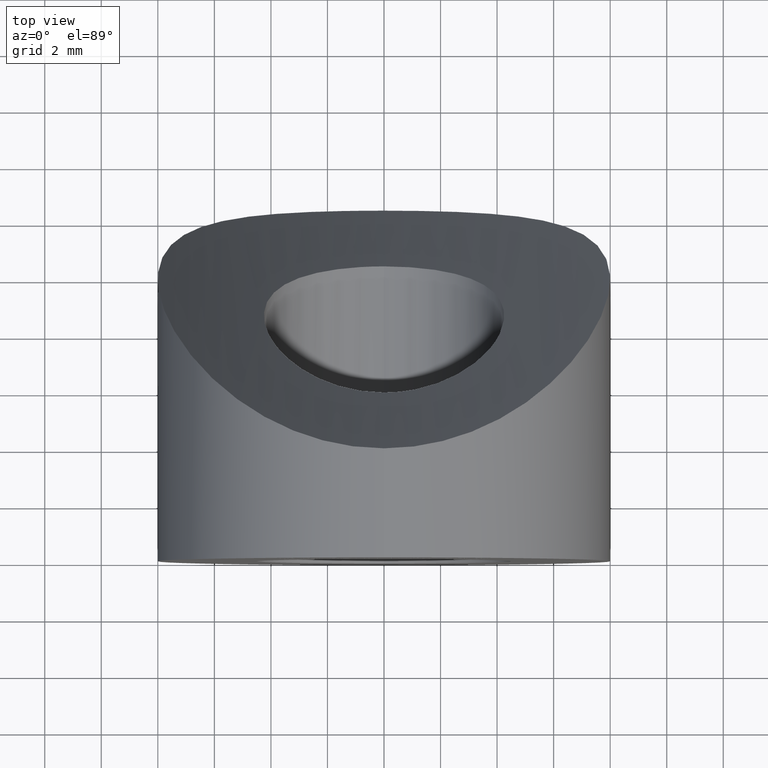
[diagram: clean part render]
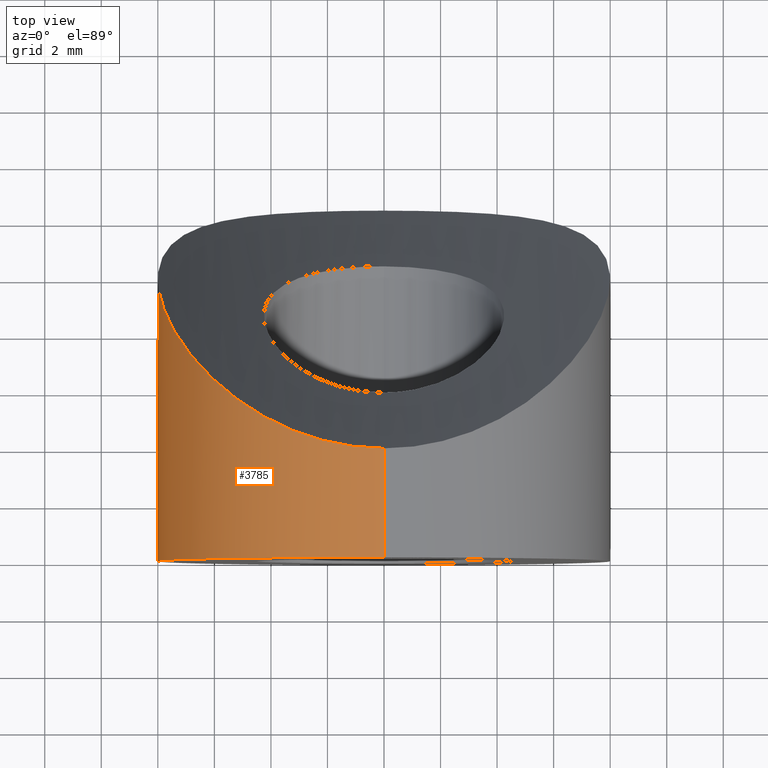
[diagram: same view with one face highlighted and labeled with its STEP entity id]
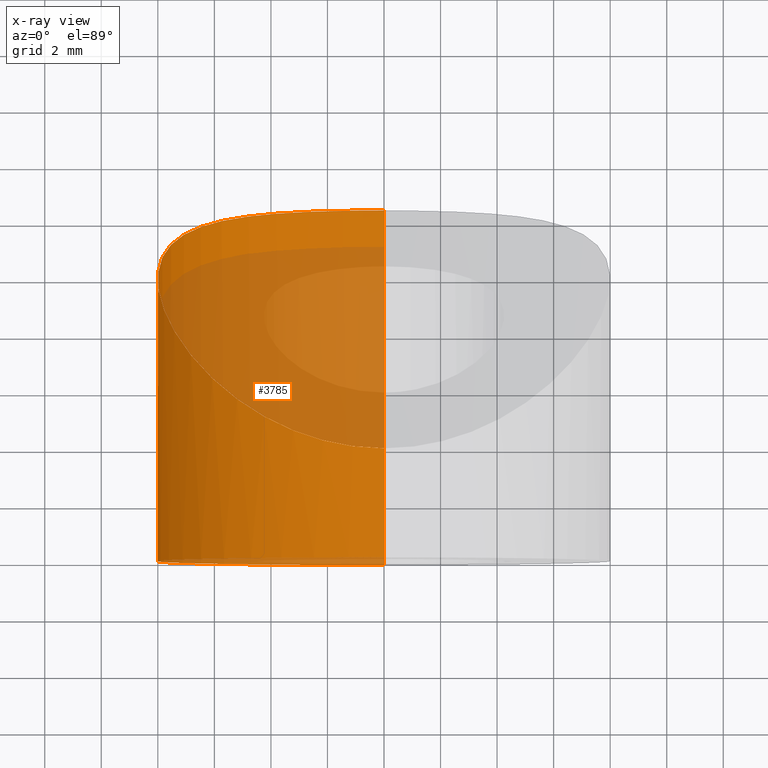
[diagram: x-ray of the same camera — body ghosted, the highlighted face saturated]
A machine part, top view. The second image highlights one B-rep face of the part: STEP entity #3785.
The next image is the same camera in x-ray: the body ghosted, the highlighted face saturated — about 45% of this face is hidden behind the body in this view.
In plain terms, the highlighted cylindrical surface (partial cylindrical patch) has radius 8 mm, axis along (-0, -1, -0).
Its self-contained STEP definition (entity closure, byte-faithful):
#338 = CARTESIAN_POINT ( 'NONE',  ( -2.786736152788436400, 12.48508676179984000, -7.520094087675589700 ) ) ;
#1299 = CARTESIAN_POINT ( 'NONE',  ( 0.0000000000000000000, 15.00000000000000000, 0.0000000000000000000 ) ) ;
#1388 = CARTESIAN_POINT ( 'NONE',  ( -7.702381306660215400, 8.667584045172475300, 2.174738470362469500 ) ) ;
#1633 = CARTESIAN_POINT ( 'NONE',  ( 0.0000000000000000000, 12.54364559710750400, -8.000000000000000000 ) ) ;
#1642 = FACE_OUTER_BOUND ( 'NONE', #5825, .T. ) ;
#1650 = DIRECTION ( 'NONE',  ( -0.0000000000000000000, -1.000000000000000000, -0.0000000000000000000 ) ) ;
#1696 = CARTESIAN_POINT ( 'NONE',  ( -6.872287920162157200, 7.262174114333410200, 4.122343440638348800 ) ) ;
#2157 = AXIS2_PLACEMENT_3D ( 'NONE', #1299, #2343, #10087 ) ;
#2327 = B_SPLINE_CURVE_WITH_KNOTS ( 'NONE', 3,
 ( #4822, #4664, #9298, #6047, #7191, #10574, #8371, #11616, #3784, #12644, #10476, #9393, #3832, #6145, #8274, #1696, #13844, #8946, #5673, #13490, #1388, #6792, #8994, #4642, #6683, #2387, #10119, #12375, #5776, #6889, #3814, #9193, #13684, #4699, #8118, #2640, #3716, #6939, #11468, #338, #11508, #5887, #4856, #1633 ),
 .UNSPECIFIED., .F., .F.,
 ( 4, 2, 2, 2, 2, 2, 2, 2, 2, 2, 2, 2, 2, 2, 2, 2, 2, 2, 2, 2, 2, 4 ),
 ( 0.02701819719520242800, 0.02786116612738330200, 0.02870413505956417200, 0.02954710399174504500, 0.03039007292392591600, 0.03207601078828765900, 0.03376194865264940700, 0.03544788651701115400, 0.03713382438137289400, 0.03797679331355376800, 0.03881976224573464200, 0.04050570011009638900, 0.04134866904227726300, 0.04219163797445813600, 0.04387757583881987700, 0.04472054477100075000, 0.04556351370318162400, 0.04724945156754337100, 0.04893538943190511900, 0.05062132729626685200, 0.05230726516062859900, 0.05399320302499034700 ),
 .UNSPECIFIED. ) ;
#2343 = DIRECTION ( 'NONE',  ( -0.0000000000000000000, -1.000000000000000000, -0.0000000000000000000 ) ) ;
#2349 = VERTEX_POINT ( 'NONE', #8091 ) ;
#2387 = CARTESIAN_POINT ( 'NONE',  ( -7.990361364526486400, 10.23204400104939400, -0.4659814713280361900 ) ) ;
#2442 = LINE ( 'NONE', #12736, #12284 ) ;
#2640 = CARTESIAN_POINT ( 'NONE',  ( -5.621466763060554200, 12.16486885297038800, -5.719661064488838600 ) ) ;
#3575 = ORIENTED_EDGE ( 'NONE', *, *, #10992, .T. ) ;
#3716 = CARTESIAN_POINT ( 'NONE',  ( -5.209733333389100300, 12.24419281215258300, -6.096946806651213400 ) ) ;
#3784 = CARTESIAN_POINT ( 'NONE',  ( -2.984336613303713900, 4.405936689386974700, 7.427223310258525200 ) ) ;
#3785 = ADVANCED_FACE ( 'NONE', ( #1642 ), #6456, .T. ) ;
#3814 = CARTESIAN_POINT ( 'NONE',  ( -7.425314106272754300, 11.35086809684480300, -2.989536951724244500 ) ) ;
#3832 = CARTESIAN_POINT ( 'NONE',  ( -5.358877780947066700, 5.744293494589231700, 5.959421206919623500 ) ) ;
#4015 = VERTEX_POINT ( 'NONE', #14089 ) ;
#4642 = CARTESIAN_POINT ( 'NONE',  ( -7.998716546680868500, 9.829325262146340900, 0.2828505063567090500 ) ) ;
#4664 = CARTESIAN_POINT ( 'NONE',  ( -0.2830179921744991300, 3.856354402892480300, 7.999999999999998200 ) ) ;
#4699 = CARTESIAN_POINT ( 'NONE',  ( -6.683778314718883200, 11.83300966187129100, -4.429503339823750900 ) ) ;
#4822 = CARTESIAN_POINT ( 'NONE',  ( -1.160757014394251200E-014, 3.856354402892348400, 8.000000000000142100 ) ) ;
#4856 = CARTESIAN_POINT ( 'NONE',  ( -0.5700190088106780200, 12.54364559710750400, -8.000000000000001800 ) ) ;
#4857 = VECTOR ( 'NONE', #1650, 1000.000000000000000 ) ;
#5673 = CARTESIAN_POINT ( 'NONE',  ( -7.479229562632675700, 8.203982047235593100, 2.849079400745751400 ) ) ;
#5776 = CARTESIAN_POINT ( 'NONE',  ( -7.768562296186947200, 10.95340918052565900, -1.982316869550431600 ) ) ;
#5825 = EDGE_LOOP ( 'NONE', ( #10206, #13477, #9691, #3575 ) ) ;
#5887 = CARTESIAN_POINT ( 'NONE',  ( -1.138721777730675700, 12.53697015236627100, -7.938998064131332900 ) ) ;
#6047 = CARTESIAN_POINT ( 'NONE',  ( -1.130101699430392700, 3.929384102359714700, 7.924780709471399100 ) ) ;
#6145 = CARTESIAN_POINT ( 'NONE',  ( -6.035554685636197900, 6.331825020748463700, 5.272983200172975900 ) ) ;
#6220 = EDGE_CURVE ( 'NONE', #6511, #4015, #2327, .T. ) ;
#6456 = CYLINDRICAL_SURFACE ( 'NONE', #2157, 8.000000000000000000 ) ;
#6511 = VERTEX_POINT ( 'NONE', #10413 ) ;
#6683 = CARTESIAN_POINT ( 'NONE',  ( -8.003856920668281900, 9.965806681867551500, 0.03588677763684884600 ) ) ;
#6792 = CARTESIAN_POINT ( 'NONE',  ( -7.875224580259842200, 9.119391463982944800, 1.485092132200559900 ) ) ;
#6889 = CARTESIAN_POINT ( 'NONE',  ( -7.521909025493018300, 11.25529727095252700, -2.736954455680088200 ) ) ;
#6939 = CARTESIAN_POINT ( 'NONE',  ( -4.308792950728352400, 12.37006714772354800, -6.763755249557275900 ) ) ;
#7042 = DIRECTION ( 'NONE',  ( 0.0000000000000000000, 0.0000000000000000000, 1.000000000000000000 ) ) ;
#7083 = AXIS2_PLACEMENT_3D ( 'NONE', #13646, #9291, #7042 ) ;
#7191 = CARTESIAN_POINT ( 'NONE',  ( -1.405350922255870000, 3.972335361403611700, 7.880462316475370000 ) ) ;
#7194 = DIRECTION ( 'NONE',  ( -0.0000000000000000000, -1.000000000000000000, -0.0000000000000000000 ) ) ;
#8091 = CARTESIAN_POINT ( 'NONE',  ( 0.0000000000000000000, 0.0000000000000000000, -8.000000000000000000 ) ) ;
#8118 = CARTESIAN_POINT ( 'NONE',  ( -6.365453288116421000, 11.95748446974043900, -4.878156998050796400 ) ) ;
#8274 = CARTESIAN_POINT ( 'NONE',  ( -6.340801442958258400, 6.641250002640986400, 4.900642178445516500 ) ) ;
#8371 = CARTESIAN_POINT ( 'NONE',  ( -2.214846467719028000, 4.153678148915622300, 7.692137615003490600 ) ) ;
#8832 = EDGE_CURVE ( 'NONE', #6511, #11860, #10720, .T. ) ;
#8919 = EDGE_CURVE ( 'NONE', #4015, #2349, #2442, .T. ) ;
#8946 = CARTESIAN_POINT ( 'NONE',  ( -7.391266073967351200, 8.046466418838685200, 3.069953790469705200 ) ) ;
#8994 = CARTESIAN_POINT ( 'NONE',  ( -7.950596641302061200, 9.410703870792449500, 1.012865370958341100 ) ) ;
#9193 = CARTESIAN_POINT ( 'NONE',  ( -7.207303587283654200, 11.52727702096183600, -3.482441063861098300 ) ) ;
#9291 = DIRECTION ( 'NONE',  ( 0.0000000000000000000, 1.000000000000000000, 0.0000000000000000000 ) ) ;
#9298 = CARTESIAN_POINT ( 'NONE',  ( -0.5701592657721308300, 3.871321838690140500, 7.984622568156851200 ) ) ;
#9393 = CARTESIAN_POINT ( 'NONE',  ( -4.987089636623487400, 5.464817044719458400, 6.275375159814844400 ) ) ;
#9691 = ORIENTED_EDGE ( 'NONE', *, *, #8919, .T. ) ;
#9814 = CARTESIAN_POINT ( 'NONE',  ( 9.797174393178825700E-016, 0.0000000000000000000, 8.000000000000000000 ) ) ;
#10087 = DIRECTION ( 'NONE',  ( 0.0000000000000000000, 0.0000000000000000000, -1.000000000000000000 ) ) ;
#10119 = CARTESIAN_POINT ( 'NONE',  ( -7.971608330873510600, 10.36118974060353400, -0.7198652530148185200 ) ) ;
#10206 = ORIENTED_EDGE ( 'NONE', *, *, #8832, .F. ) ;
#10290 = CARTESIAN_POINT ( 'NONE',  ( 9.797174393178825700E-016, 15.00000000000000000, 8.000000000000000000 ) ) ;
#10413 = CARTESIAN_POINT ( 'NONE',  ( -1.160757014394251200E-014, 3.856354402892348400, 8.000000000000142100 ) ) ;
#10476 = CARTESIAN_POINT ( 'NONE',  ( -4.164531792122995000, 4.946493517477232000, 6.848946735997837500 ) ) ;
#10574 = CARTESIAN_POINT ( 'NONE',  ( -1.946943648810453000, 4.084222915984798700, 7.764412918207688600 ) ) ;
#10720 = LINE ( 'NONE', #10290, #4857 ) ;
#10992 = EDGE_CURVE ( 'NONE', #2349, #11860, #13281, .T. ) ;
#11468 = CARTESIAN_POINT ( 'NONE',  ( -3.813665478287682200, 12.41673682127645700, -7.055045647794790900 ) ) ;
#11508 = CARTESIAN_POINT ( 'NONE',  ( -2.251933848690692100, 12.50752873787550500, -7.697608166858085400 ) ) ;
#11616 = CARTESIAN_POINT ( 'NONE',  ( -2.734061320267826100, 4.314805210808007300, 7.523259576854599100 ) ) ;
#11860 = VERTEX_POINT ( 'NONE', #9814 ) ;
#12284 = VECTOR ( 'NONE', #7194, 1000.000000000000000 ) ;
#12375 = CARTESIAN_POINT ( 'NONE',  ( -7.878819915538589800, 10.72993114157391200, -1.477558185626777400 ) ) ;
#12644 = CARTESIAN_POINT ( 'NONE',  ( -3.710192800103510700, 4.706802309970643500, 7.107328181100890600 ) ) ;
#12736 = CARTESIAN_POINT ( 'NONE',  ( 0.0000000000000000000, 15.00000000000000000, -8.000000000000000000 ) ) ;
#13281 = CIRCLE ( 'NONE', #7083, 8.000000000000000000 ) ;
#13477 = ORIENTED_EDGE ( 'NONE', *, *, #6220, .T. ) ;
#13490 = CARTESIAN_POINT ( 'NONE',  ( -7.634721318827094400, 8.514506828114575000, 2.401490925687502100 ) ) ;
#13646 = CARTESIAN_POINT ( 'NONE',  ( 0.0000000000000000000, 0.0000000000000000000, 0.0000000000000000000 ) ) ;
#13684 = CARTESIAN_POINT ( 'NONE',  ( -7.085838414914992900, 11.60846852129038500, -3.723471774724371300 ) ) ;
#13844 = CARTESIAN_POINT ( 'NONE',  ( -7.101270044517122000, 7.575859272518482800, 3.713985132178633900 ) ) ;
#14089 = CARTESIAN_POINT ( 'NONE',  ( 0.0000000000000000000, 12.54364559710750400, -8.000000000000000000 ) ) ;